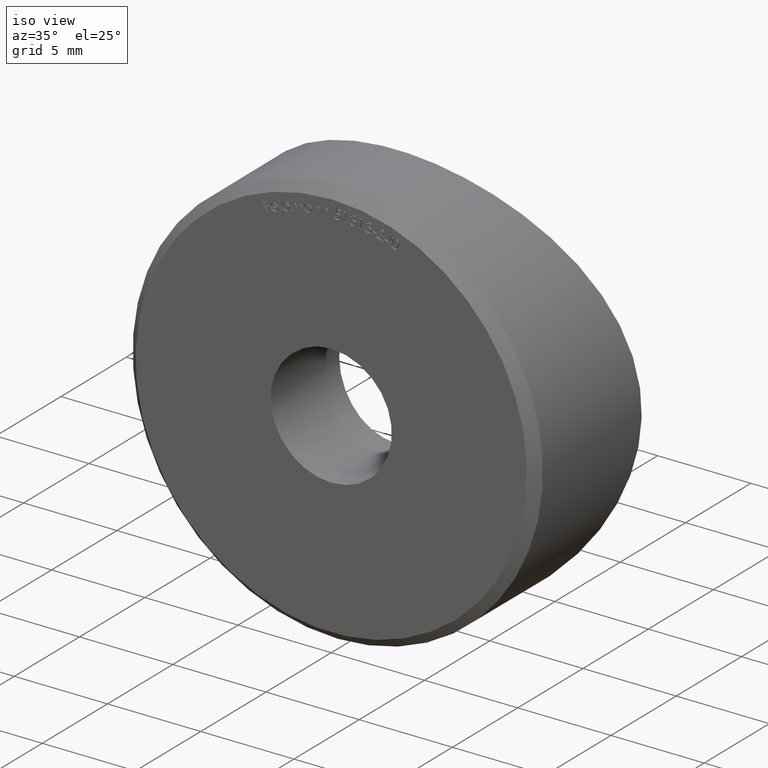
[diagram: clean part render]
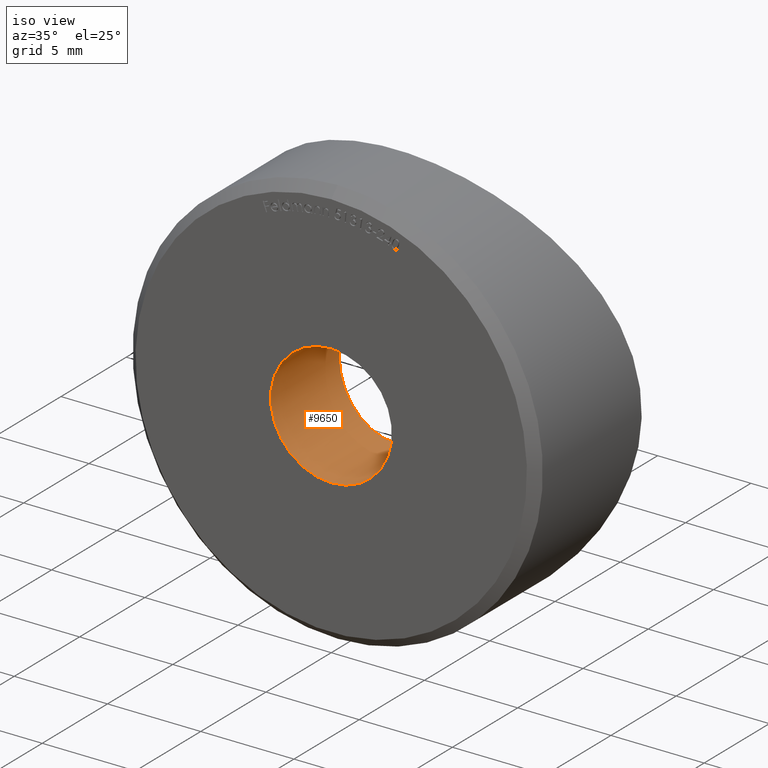
[diagram: same view with one face highlighted and labeled with its STEP entity id]
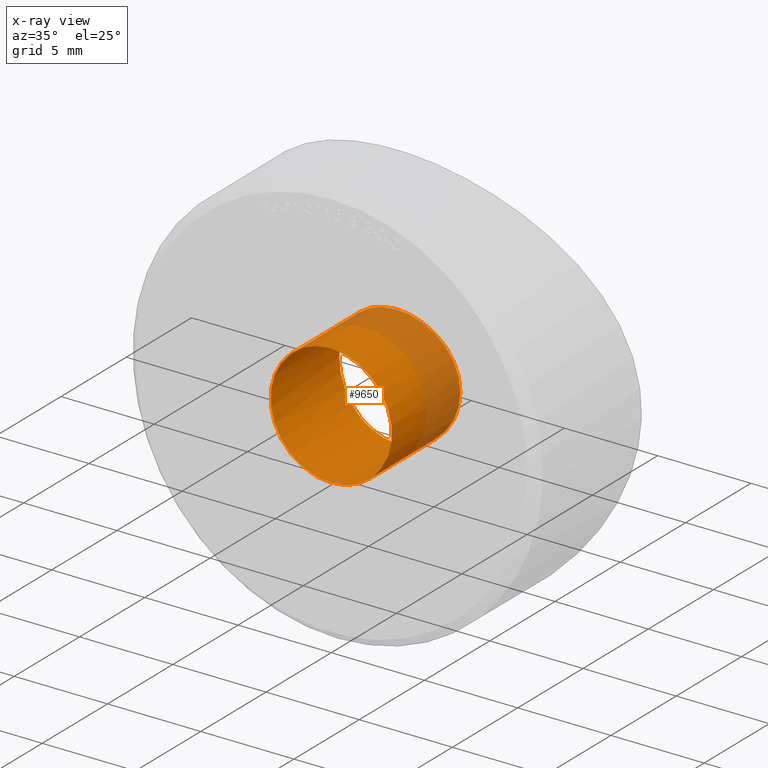
[diagram: x-ray of the same camera — body ghosted, the highlighted face saturated]
A machine part, iso view. The second image highlights one B-rep face of the part: STEP entity #9650.
The next image is the same camera in x-ray: the body ghosted, the highlighted face saturated — about 25% of this face is hidden behind the body in this view.
In plain terms, the highlighted cylindrical surface (bore or boss wall) has radius 3.25 mm, axis along (-0, -1, -0).
Its self-contained STEP definition (entity closure, byte-faithful):
#308 = CARTESIAN_POINT ( 'NONE',  ( 1.048813183214362788, 5.025042598462899690, -3.083479969123783970 ) ) ;
#348 = CARTESIAN_POINT ( 'NONE',  ( 3.249878801187870536, 5.250577864950491502, -0.2141444812808914189 ) ) ;
#472 = CARTESIAN_POINT ( 'NONE',  ( -2.921563470123207384, 5.202113776104789977, -1.439532454480769497 ) ) ;
#509 = CARTESIAN_POINT ( 'NONE',  ( 0.4291155959866739256, 5.003316562383970378, 3.228558586262969765 ) ) ;
#648 = DIRECTION ( 'NONE',  ( 0.000000000000000000, 0.000000000000000000, -1.000000000000000000 ) ) ;
#1084 = EDGE_LOOP ( 'NONE', ( #5093 ) ) ;
#1152 = EDGE_LOOP ( 'NONE', ( #5495 ) ) ;
#1332 = CARTESIAN_POINT ( 'NONE',  ( 3.084468863350044554, 5.225424174715231018, 1.045933533420550177 ) ) ;
#1425 = CARTESIAN_POINT ( 'NONE',  ( -1.627814602934459787, 5.061837651537345550, 2.821030492263118195 ) ) ;
#1470 = CARTESIAN_POINT ( 'NONE',  ( -1.443554947874320593, 5.048298792827389470, -2.919492594220398196 ) ) ;
#1514 = CARTESIAN_POINT ( 'NONE',  ( -2.583132212986961829, 5.157624671021097562, 1.983652271927015764 ) ) ;
#2166 = CARTESIAN_POINT ( 'NONE',  ( 1.441976982013438491, 5.048179998212295239, 2.920360942320131326 ) ) ;
#2322 = CARTESIAN_POINT ( 'NONE',  ( 0.8422358293998255530, 5.015715769217270470, -3.146120052033961834 ) ) ;
#2402 = CARTESIAN_POINT ( 'NONE',  ( -2.821907254063747761, 5.188313711138199835, -1.626185099247966948 ) ) ;
#2447 = CARTESIAN_POINT ( 'NONE',  ( -2.586182703388971937, 5.157999613231343261, -1.979721584527842193 ) ) ;
#2461 = CARTESIAN_POINT ( 'NONE',  ( 0.000000000000000000, 0.000000000000000000, 0.000000000000000000 ) ) ;
#2490 = CARTESIAN_POINT ( 'NONE',  ( -1.052750469737838701, 5.025250148029929420, -3.082045480473469823 ) ) ;
#3111 = CARTESIAN_POINT ( 'NONE',  ( 0.4264434180833555632, 5.003268988495230829, -3.228866455167879401 ) ) ;
#3193 = CARTESIAN_POINT ( 'NONE',  ( 1.761828530288944705E-16, 5.000000000000000000, -3.250000000000000000 ) ) ;
#3277 = CARTESIAN_POINT ( 'NONE',  ( 1.632114013627159022, 5.062182296721556618, 2.818414611199890896 ) ) ;
#3324 = CARTESIAN_POINT ( 'NONE',  ( -0.8474655071052364930, 5.015903916353784631, -3.144861060122668750 ) ) ;
#3365 = CARTESIAN_POINT ( 'NONE',  ( -1.047135578693864755, 5.024969625457599065, 3.083964024302084272 ) ) ;
#4040 = CARTESIAN_POINT ( 'NONE',  ( 1.628785365800687224, 5.061919544414683614, -2.820394063806773488 ) ) ;
#4081 = CARTESIAN_POINT ( 'NONE',  ( 2.921457232206360555, 5.202098512946935038, 1.439796084762929640 ) ) ;
#4246 = CARTESIAN_POINT ( 'NONE',  ( -2.818946742385628923, 5.187916077195380282, 1.631253392114658141 ) ) ;
#4325 = CARTESIAN_POINT ( 'NONE',  ( -0.4275380518344800151, 5.003270632450825595, -3.228863590714631027 ) ) ;
#4367 = CARTESIAN_POINT ( 'NONE',  ( -3.145373074388929435, 5.234590536070766298, 0.8449978764355208227 ) ) ;
#4407 = CARTESIAN_POINT ( 'NONE',  ( -2.918967894088988047, 5.201750911087713369, 1.444843379730633037 ) ) ;
#4536 = DIRECTION ( 'NONE',  ( 0.000000000000000000, -1.000000000000000000, 0.000000000000000000 ) ) ;
#4846 = AXIS2_PLACEMENT_3D ( 'NONE', #10229, #6410, #648 ) ;
#5089 = CARTESIAN_POINT ( 'NONE',  ( 3.228949414987504429, 5.247299707505719724, 0.4261378977443253668 ) ) ;
#5093 = ORIENTED_EDGE ( 'NONE', *, *, #6231, .F. ) ;
#5170 = CARTESIAN_POINT ( 'NONE',  ( 3.145545920331514367, 5.234615933909436691, -0.8448765615216186076 ) ) ;
#5293 = CARTESIAN_POINT ( 'NONE',  ( -0.2150499108967883488, 5.000000000000000000, -3.250000000000000888 ) ) ;
#5373 = CARTESIAN_POINT ( 'NONE',  ( -3.228460125727636854, 5.247224265413160005, 0.4294629260577603747 ) ) ;
#5495 = ORIENTED_EDGE ( 'NONE', *, *, #8224, .T. ) ;
#5963 = AXIS2_PLACEMENT_3D ( 'NONE', #2461, #4536, #12127 ) ;
#5969 = CARTESIAN_POINT ( 'NONE',  ( 2.819839704047509166, 5.188038072627501940, 1.629648758818288190 ) ) ;
#6046 = CARTESIAN_POINT ( 'NONE',  ( 3.250120148735857306, 5.250615306561056350, 0.2104497566037686895 ) ) ;
#6095 = CARTESIAN_POINT ( 'NONE',  ( 2.820025938915971420, 5.188055802896705870, -1.629600005252397787 ) ) ;
#6223 = CARTESIAN_POINT ( 'NONE',  ( -3.146879315023292101, 5.234817270407253531, -0.8394113261485789401 ) ) ;
#6231 = EDGE_CURVE ( 'NONE', #9907, #9907, #11548, .T. ) ;
#6357 = CARTESIAN_POINT ( 'NONE',  ( -1.982543221950620493, 5.092152875658099376, 2.584088967683312976 ) ) ;
#6410 = DIRECTION ( 'NONE',  ( -0.000000000000000000, -1.000000000000000000, -0.000000000000000000 ) ) ;
#7019 = FACE_OUTER_BOUND ( 'NONE', #1152, .T. ) ;
#7078 = CARTESIAN_POINT ( 'NONE',  ( 2.450216287825434769, 5.141518995334100950, 2.145877321455287756 ) ) ;
#7119 = CARTESIAN_POINT ( 'NONE',  ( 3.229158249383776713, 5.247331311357136485, -0.4252205798870901110 ) ) ;
#7163 = CARTESIAN_POINT ( 'NONE',  ( -0.4221747768704007253, 5.003162049178560444, 3.229572058187728079 ) ) ;
#7203 = CARTESIAN_POINT ( 'NONE',  ( -2.449360428614455021, 5.141432951849284727, -2.146600966553939838 ) ) ;
#7248 = CARTESIAN_POINT ( 'NONE',  ( -3.084331617472059417, 5.225404474577613811, -1.046272082645803181 ) ) ;
#7295 = CARTESIAN_POINT ( 'NONE',  ( -2.146023883358506357, 5.108358818845009530, 2.449889132001904724 ) ) ;
#7336 = CARTESIAN_POINT ( 'NONE',  ( -0.8423241288772209678, 5.015697776005911379, 3.146244949644531275 ) ) ;
#7467 = CYLINDRICAL_SURFACE ( 'NONE', #4846, 3.250000000000000444 ) ;
#7480 = FACE_OUTER_BOUND ( 'NONE', #1084, .T. ) ;
#8001 = CARTESIAN_POINT ( 'NONE',  ( 3.145907283640577479, 5.234670733938490805, 0.8431934506264089357 ) ) ;
#8078 = CARTESIAN_POINT ( 'NONE',  ( 2.147498635732049355, 5.108498590889064772, 2.448795407009364045 ) ) ;
#8155 = CARTESIAN_POINT ( 'NONE',  ( -0.2109978030792261927, 4.999987487099255112, 3.250081622620013988 ) ) ;
#8195 = CARTESIAN_POINT ( 'NONE',  ( -3.250179184896289986, 5.250624465169170030, -0.2120780358195728799 ) ) ;
#8210 = CIRCLE ( 'NONE', #5963, 3.250000000000000444 ) ;
#8224 = EDGE_CURVE ( 'NONE', #12300, #12300, #8210, .T. ) ;
#8228 = CARTESIAN_POINT ( 'NONE',  ( -3.249818524630295968, 5.250568513912571511, 0.2175347884361278628 ) ) ;
#8922 = CARTESIAN_POINT ( 'NONE',  ( 2.448021508383575906, 5.141276147427542575, -2.148135978368177934 ) ) ;
#9050 = CARTESIAN_POINT ( 'NONE',  ( 1.983721702801613640, 5.092276730629055947, 2.583041865695764994 ) ) ;
#9133 = CARTESIAN_POINT ( 'NONE',  ( 1.048768862925172352, 5.025041419713670798, 3.083486585384174195 ) ) ;
#9220 = CARTESIAN_POINT ( 'NONE',  ( -2.445886756578095511, 5.141026041220951193, 2.150584395238201552 ) ) ;
#9650 = ADVANCED_FACE ( 'NONE', ( #7019, #7480 ), #7467, .F. ) ;
#9834 = CARTESIAN_POINT ( 'NONE',  ( 2.582435166560727691, 5.157534035934569161, -1.984734512167307008 ) ) ;
#9907 = VERTEX_POINT ( 'NONE', #12284 ) ;
#9913 = CARTESIAN_POINT ( 'NONE',  ( 2.584791864171175124, 5.157830648604959656, 1.981439389069279189 ) ) ;
#9953 = CARTESIAN_POINT ( 'NONE',  ( 1.981826496045465458, 5.092092693632163325, -2.584555703128702753 ) ) ;
#10002 = CARTESIAN_POINT ( 'NONE',  ( 0.8461986512866619403, 5.015867334446159731, 3.145103906425347873 ) ) ;
#10088 = CARTESIAN_POINT ( 'NONE',  ( -1.987048177762577250, 5.092573537354079249, -2.580679049020069726 ) ) ;
#10172 = CARTESIAN_POINT ( 'NONE',  ( -1.438401774077969986, 5.047945617049649059, 2.922041642359909375 ) ) ;
#10229 = CARTESIAN_POINT ( 'NONE',  ( 0.000000000000000000, 8.826829395386770472, 0.000000000000000000 ) ) ;
#10788 = CARTESIAN_POINT ( 'NONE',  ( 2.148733871589560973, 5.108636782950790156, -2.447496728527361665 ) ) ;
#10829 = CARTESIAN_POINT ( 'NONE',  ( 2.920790955711716652, 5.202007454047537394, -1.440923180346524779 ) ) ;
#10869 = CARTESIAN_POINT ( 'NONE',  ( 1.442239263721961207, 5.048196862764303461, -2.920240353027569569 ) ) ;
#10908 = CARTESIAN_POINT ( 'NONE',  ( 3.082978690918155351, 5.225206719536253708, -1.050010385649534417 ) ) ;
#10954 = CARTESIAN_POINT ( 'NONE',  ( -3.229269677274341888, 5.247349722291168028, -0.4234125048040465189 ) ) ;
#11035 = CARTESIAN_POINT ( 'NONE',  ( -2.150385480687889039, 5.108806223564106297, -2.446038532672659915 ) ) ;
#11072 = CARTESIAN_POINT ( 'NONE',  ( 1.761828530288944705E-16, 5.000000000000000000, -3.250000000000000000 ) ) ;
#11114 = CARTESIAN_POINT ( 'NONE',  ( -3.082691481000265910, 5.225161464275912770, 1.051170391345816135 ) ) ;
#11548 = B_SPLINE_CURVE_WITH_KNOTS ( 'NONE', 3,
 ( #3193, #11780, #3111, #2322, #308, #10869, #4040, #9953, #10788, #8922, #9834, #6095, #10829, #10908, #5170, #7119, #348, #6046, #5089, #8001, #1332, #4081, #5969, #9913, #7078, #8078, #9050, #3277, #2166, #9133, #10002, #509, #12078, #8155, #7163, #7336, #3365, #10172, #1425, #6357, #7295, #9220, #1514, #4246, #4407, #11114, #4367, #5373, #8228, #8195, #10954, #6223, #7248, #472, #2402, #2447, #7203, #11035, #10088, #12038, #1470, #2490, #3324, #4325, #5293, #11072 ),
 .UNSPECIFIED., .T., .F.,
 ( 4, 2, 2, 2, 2, 2, 2, 2, 2, 2, 2, 2, 2, 2, 2, 2, 2, 2, 2, 2, 2, 2, 2, 2, 2, 2, 2, 2, 2, 2, 2, 2, 4 ),
 ( 0.000000000000000000, 0.0006359210278306045867, 0.001271842055661209173, 0.001907763083491813760, 0.002543684111322418347, 0.003179605139153022716, 0.003815526166983627520, 0.004451447194814232323, 0.005087368222644836693, 0.005723289250475441063, 0.006359210278306045433, 0.006995131306136650670, 0.007631052333967255040, 0.008266973361797859410, 0.008902894389628464647, 0.009538815417459068149, 0.01017473644528967339, 0.01081065747312027862, 0.01144657850095088213, 0.01208249952878148736, 0.01271842055661209087, 0.01335434158444269610, 0.01399026261227330134, 0.01462618364010390484, 0.01526210466793451008, 0.01589802569576511532, 0.01653394672359571882, 0.01716986775142632232, 0.01780578877925692929, 0.01844170980708753280, 0.01907763083491813630, 0.01971355186274874327, 0.02034947289057934677 ),
 .UNSPECIFIED. ) ;
#11780 = CARTESIAN_POINT ( 'NONE',  ( 0.2150499108967887096, 5.000000000000000000, -3.249999999999999112 ) ) ;
#12038 = CARTESIAN_POINT ( 'NONE',  ( -1.631629457461084787, 5.062128828798766023, -2.818873911395462617 ) ) ;
#12078 = CARTESIAN_POINT ( 'NONE',  ( 0.2135048230366514699, 5.000012587018064281, 3.249917893906966171 ) ) ;
#12127 = DIRECTION ( 'NONE',  ( 0.000000000000000000, 0.000000000000000000, -1.000000000000000000 ) ) ;
#12200 = CARTESIAN_POINT ( 'NONE',  ( 0.000000000000000000, 0.000000000000000000, -3.250000000000000444 ) ) ;
#12284 = CARTESIAN_POINT ( 'NONE',  ( 0.000000000000000000, 5.000000000000000888, -3.250000000000000444 ) ) ;
#12300 = VERTEX_POINT ( 'NONE', #12200 ) ;